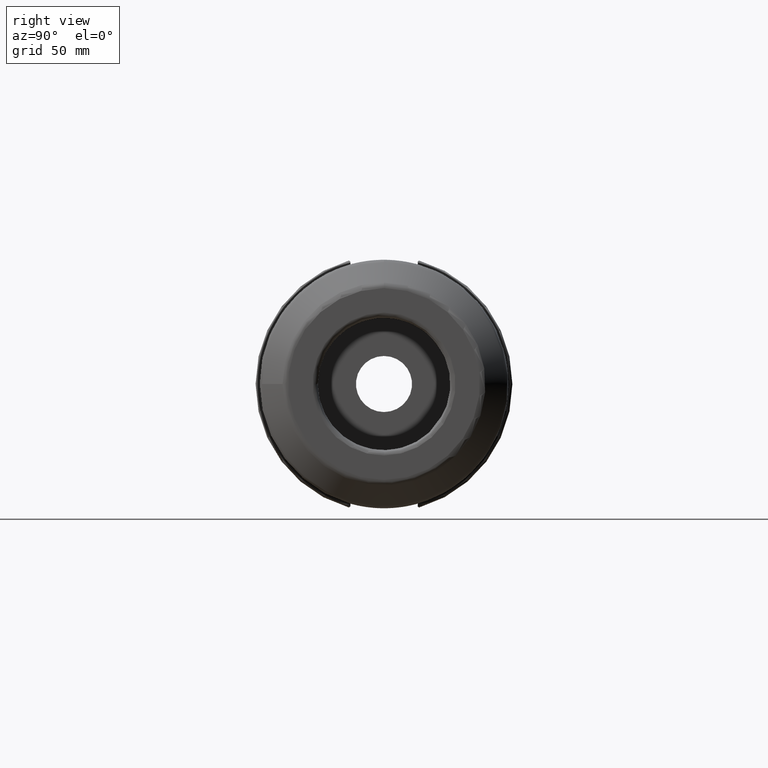
[diagram: clean part render]
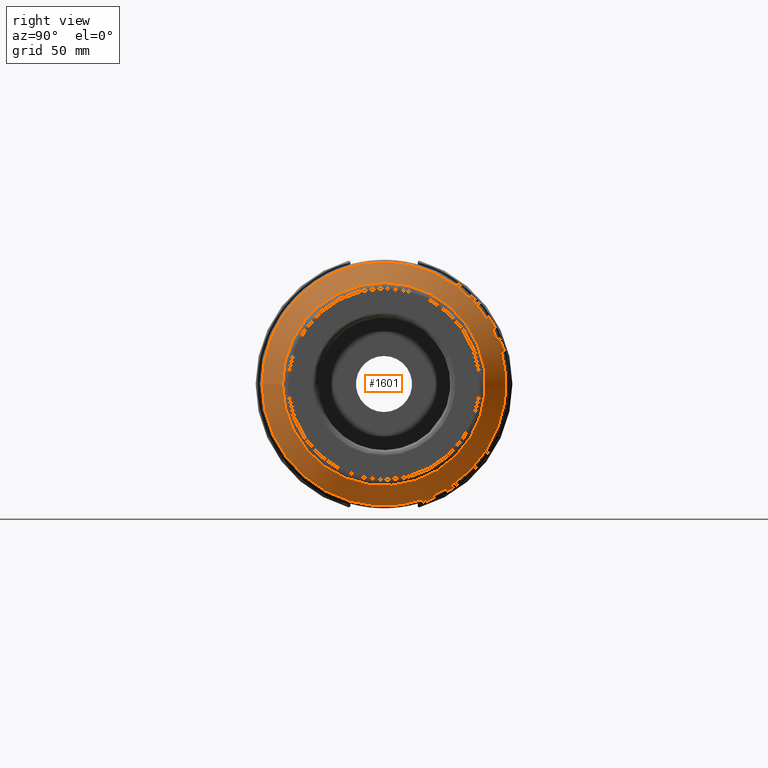
[diagram: same view with one face highlighted and labeled with its STEP entity id]
A machine part, right view. The second image highlights one B-rep face of the part: STEP entity #1601.
In plain terms, the highlighted conical surface has half-angle 45 deg.
Its self-contained STEP definition (entity closure, byte-faithful):
#70=CONICAL_SURFACE('',#1726,42.8125,0.785398163397448);
#111=LINE('',#2559,#202);
#202=VECTOR('',#1932,42.8125);
#322=FACE_OUTER_BOUND('',#415,.T.);
#415=EDGE_LOOP('',(#1114,#1115,#1116,#1117,#1118,#1119));
#530=CIRCLE('',#1724,38.8786796564404);
#531=CIRCLE('',#1725,38.8786796564404);
#532=CIRCLE('',#1727,46.7463203435596);
#533=CIRCLE('',#1728,46.7463203435596);
#683=VERTEX_POINT('',#2552);
#684=VERTEX_POINT('',#2554);
#685=VERTEX_POINT('',#2558);
#686=VERTEX_POINT('',#2560);
#856=EDGE_CURVE('',#683,#684,#530,.T.);
#857=EDGE_CURVE('',#684,#683,#531,.T.);
#858=EDGE_CURVE('',#684,#685,#111,.T.);
#859=EDGE_CURVE('',#686,#685,#532,.T.);
#860=EDGE_CURVE('',#685,#686,#533,.T.);
#1114=ORIENTED_EDGE('',*,*,#857,.F.);
#1115=ORIENTED_EDGE('',*,*,#858,.T.);
#1116=ORIENTED_EDGE('',*,*,#859,.F.);
#1117=ORIENTED_EDGE('',*,*,#860,.F.);
#1118=ORIENTED_EDGE('',*,*,#858,.F.);
#1119=ORIENTED_EDGE('',*,*,#856,.F.);
#1601=ADVANCED_FACE('',(#322),#70,.T.);
#1724=AXIS2_PLACEMENT_3D('',#2555,#1926,#1927);
#1725=AXIS2_PLACEMENT_3D('',#2556,#1928,#1929);
#1726=AXIS2_PLACEMENT_3D('',#2557,#1930,#1931);
#1727=AXIS2_PLACEMENT_3D('',#2561,#1933,#1934);
#1728=AXIS2_PLACEMENT_3D('',#2562,#1935,#1936);
#1926=DIRECTION('center_axis',(1.,0.,0.));
#1927=DIRECTION('ref_axis',(0.,-1.,3.06161699786838E-17));
#1928=DIRECTION('center_axis',(1.,0.,0.));
#1929=DIRECTION('ref_axis',(0.,-1.,3.06161699786838E-17));
#1930=DIRECTION('center_axis',(-1.,0.,0.));
#1931=DIRECTION('ref_axis',(0.,1.,0.));
#1932=DIRECTION('',(-0.707106781186548,-0.707106781186547,-8.65956056235493E-17));
#1933=DIRECTION('center_axis',(-1.,0.,0.));
#1934=DIRECTION('ref_axis',(0.,-1.,3.06161699786838E-17));
#1935=DIRECTION('center_axis',(-1.,0.,0.));
#1936=DIRECTION('ref_axis',(0.,-1.,3.06161699786838E-17));
#2552=CARTESIAN_POINT('',(142.12132034356,-4.7612650596335E-15,38.8786796564404));
#2554=CARTESIAN_POINT('',(142.12132034356,-38.8786796564404,-4.7612650596335E-15));
#2555=CARTESIAN_POINT('Origin',(142.12132034356,0.,-5.95158132454188E-15));
#2556=CARTESIAN_POINT('Origin',(142.12132034356,0.,-5.95158132454188E-15));
#2557=CARTESIAN_POINT('Origin',(138.1875,0.,0.));
#2558=CARTESIAN_POINT('',(134.25367965644,-46.7463203435597,-5.72477315806571E-15));
#2559=CARTESIAN_POINT('',(138.1875,-42.8125,-5.24301910884961E-15));
#2560=CARTESIAN_POINT('',(134.25367965644,-5.72477315806571E-15,46.7463203435596));
#2561=CARTESIAN_POINT('Origin',(134.25367965644,0.,-7.15596644758214E-15));
#2562=CARTESIAN_POINT('Origin',(134.25367965644,0.,-7.15596644758214E-15));